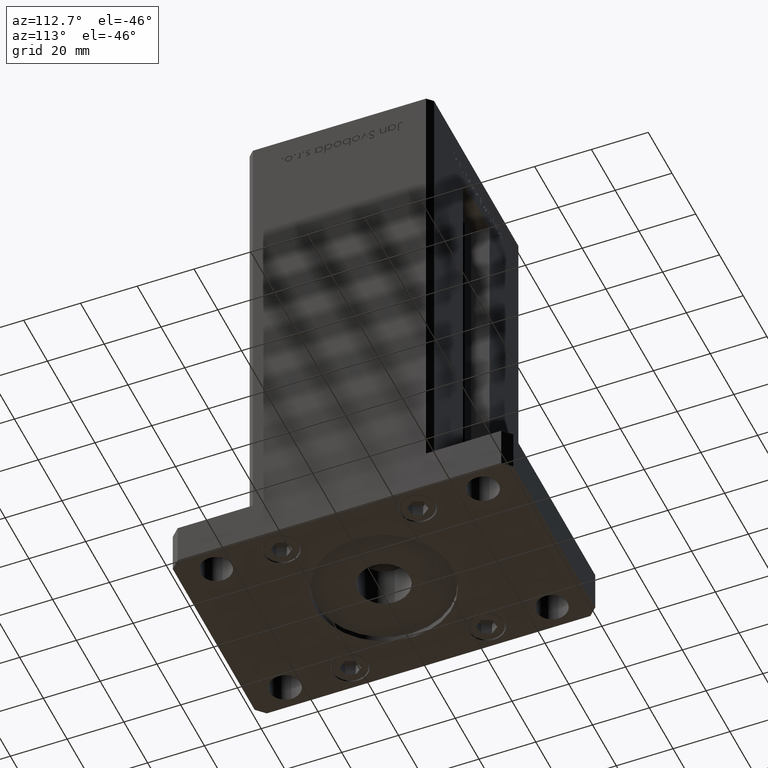
[diagram: clean part render]
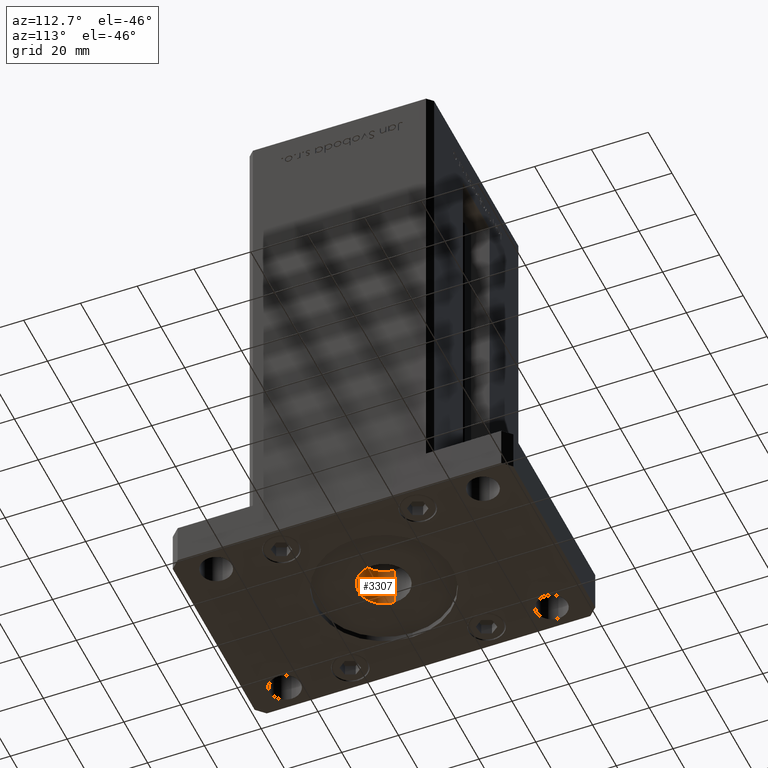
[diagram: same view with one face highlighted and labeled with its STEP entity id]
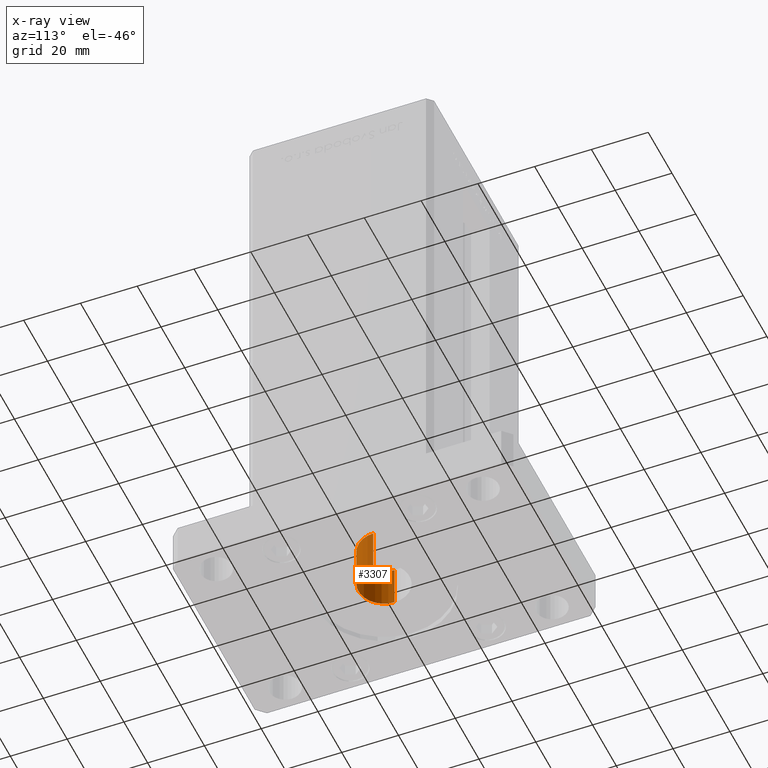
[diagram: x-ray of the same camera — body ghosted, the highlighted face saturated]
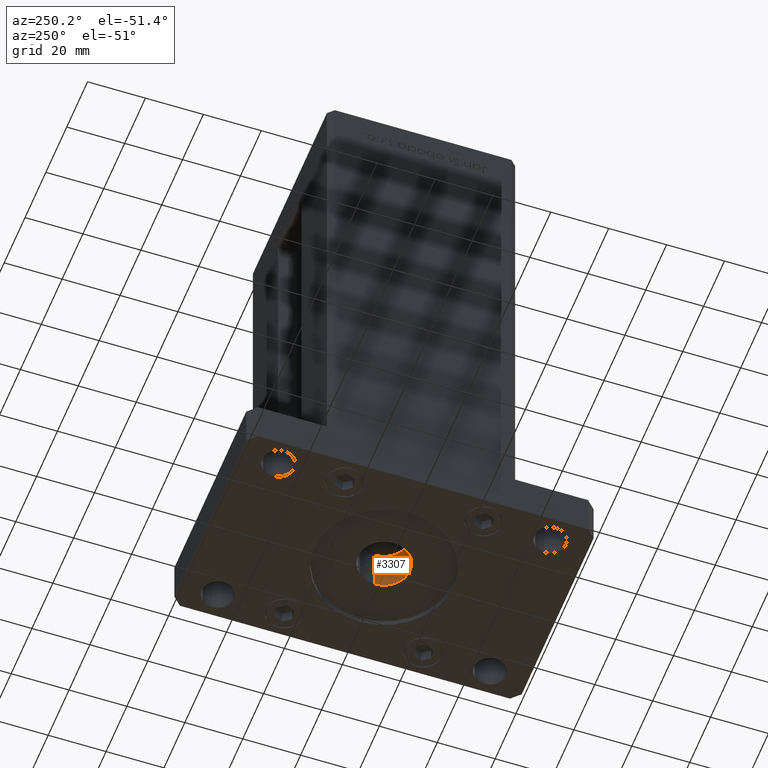
[diagram: same view with one face highlighted and labeled with its STEP entity id]
A machine part, auxiliary view. The second image highlights one B-rep face of the part: STEP entity #3307.
The next image is the same camera in x-ray: the body ghosted, the highlighted face saturated — about 0% of this face is hidden behind the body in this view.
A second angle (auxiliary view) of the same face is appended — the face is thin or edge-on in the first view.
In plain terms, the highlighted cylindrical surface (edge-blend (fillet) strip) has radius 9 mm, axis along (0, 0, 1).
Its self-contained STEP definition (entity closure, byte-faithful):
#228 = CARTESIAN_POINT ( 'NONE',  ( -9.000000000000000000, 1.102182119232617714E-15, 2.000000000000000000 ) ) ;
#1121 = EDGE_CURVE ( 'NONE', #45737, #22240, #35569, .T. ) ;
#3307 = ADVANCED_FACE ( 'NONE', ( #7545 ), #11619, .F. ) ;
#6848 = AXIS2_PLACEMENT_3D ( 'NONE', #11884, #19775, #49603 ) ;
#7545 = FACE_OUTER_BOUND ( 'NONE', #52355, .T. ) ;
#8407 = EDGE_CURVE ( 'NONE', #45737, #12034, #19897, .T. ) ;
#8600 = AXIS2_PLACEMENT_3D ( 'NONE', #43645, #19453, #31418 ) ;
#9846 = DIRECTION ( 'NONE',  ( 0.000000000000000000, 0.000000000000000000, 1.000000000000000000 ) ) ;
#10251 = CARTESIAN_POINT ( 'NONE',  ( 9.000000000000000000, 0.000000000000000000, 17.00000000000000000 ) ) ;
#10835 = DIRECTION ( 'NONE',  ( -0.000000000000000000, -0.000000000000000000, 1.000000000000000000 ) ) ;
#11619 = CYLINDRICAL_SURFACE ( 'NONE', #6848, 9.000000000000000000 ) ;
#11884 = CARTESIAN_POINT ( 'NONE',  ( 0.000000000000000000, 0.000000000000000000, 0.000000000000000000 ) ) ;
#12034 = VERTEX_POINT ( 'NONE', #21354 ) ;
#13674 = ORIENTED_EDGE ( 'NONE', *, *, #24402, .F. ) ;
#16929 = EDGE_CURVE ( 'NONE', #22240, #30313, #27908, .T. ) ;
#19453 = DIRECTION ( 'NONE',  ( -0.000000000000000000, -0.000000000000000000, 1.000000000000000000 ) ) ;
#19775 = DIRECTION ( 'NONE',  ( -0.000000000000000000, -0.000000000000000000, 1.000000000000000000 ) ) ;
#19897 = CIRCLE ( 'NONE', #8600, 9.000000000000000000 ) ;
#21354 = CARTESIAN_POINT ( 'NONE',  ( 9.000000000000000000, 0.000000000000000000, 2.000000000000000000 ) ) ;
#21539 = LINE ( 'NONE', #45449, #45017 ) ;
#22240 = VERTEX_POINT ( 'NONE', #41219 ) ;
#24402 = EDGE_CURVE ( 'NONE', #12034, #30313, #21539, .T. ) ;
#24950 = VECTOR ( 'NONE', #10835, 1000.000000000000000 ) ;
#26155 = ORIENTED_EDGE ( 'NONE', *, *, #1121, .T. ) ;
#26400 = DIRECTION ( 'NONE',  ( 1.000000000000000000, 0.000000000000000000, 0.000000000000000000 ) ) ;
#27908 = CIRCLE ( 'NONE', #48707, 9.000000000000000000 ) ;
#30313 = VERTEX_POINT ( 'NONE', #10251 ) ;
#31418 = DIRECTION ( 'NONE',  ( -1.000000000000000000, 0.000000000000000000, 0.000000000000000000 ) ) ;
#31457 = ORIENTED_EDGE ( 'NONE', *, *, #8407, .F. ) ;
#31485 = CARTESIAN_POINT ( 'NONE',  ( -9.000000000000000000, 1.102182119232617714E-15, 0.000000000000000000 ) ) ;
#35569 = LINE ( 'NONE', #31485, #24950 ) ;
#37866 = DIRECTION ( 'NONE',  ( -0.000000000000000000, -0.000000000000000000, 1.000000000000000000 ) ) ;
#41219 = CARTESIAN_POINT ( 'NONE',  ( -9.000000000000000000, 1.102182119232617714E-15, 17.00000000000000000 ) ) ;
#43645 = CARTESIAN_POINT ( 'NONE',  ( 0.000000000000000000, 0.000000000000000000, 2.000000000000000000 ) ) ;
#45017 = VECTOR ( 'NONE', #37866, 1000.000000000000000 ) ;
#45449 = CARTESIAN_POINT ( 'NONE',  ( 9.000000000000000000, 0.000000000000000000, 0.000000000000000000 ) ) ;
#45737 = VERTEX_POINT ( 'NONE', #228 ) ;
#48707 = AXIS2_PLACEMENT_3D ( 'NONE', #51894, #9846, #26400 ) ;
#49603 = DIRECTION ( 'NONE',  ( 1.000000000000000000, 0.000000000000000000, 0.000000000000000000 ) ) ;
#51623 = ORIENTED_EDGE ( 'NONE', *, *, #16929, .T. ) ;
#51894 = CARTESIAN_POINT ( 'NONE',  ( 0.000000000000000000, 0.000000000000000000, 17.00000000000000000 ) ) ;
#52355 = EDGE_LOOP ( 'NONE', ( #31457, #26155, #51623, #13674 ) ) ;